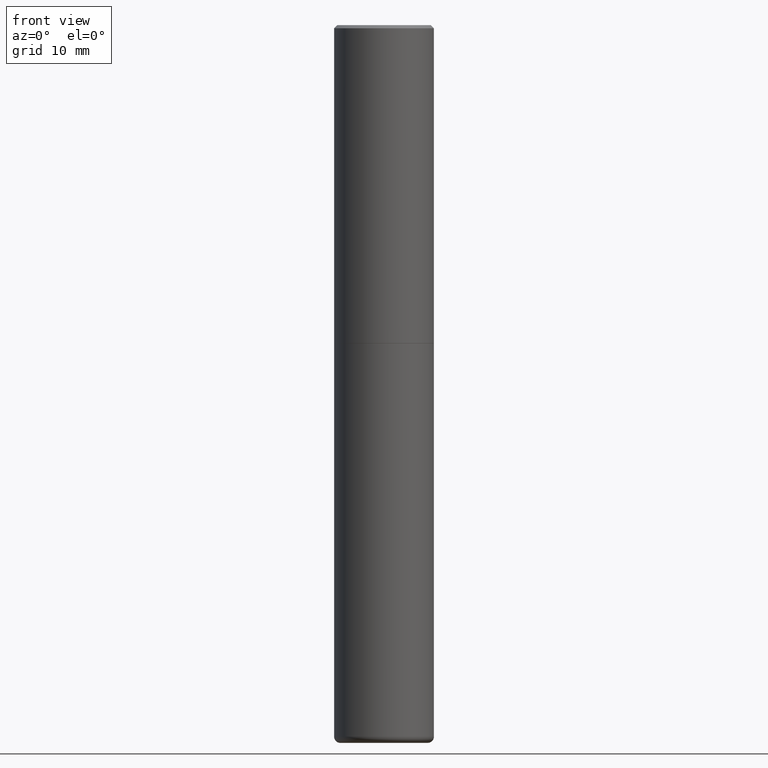
[diagram: clean part render]
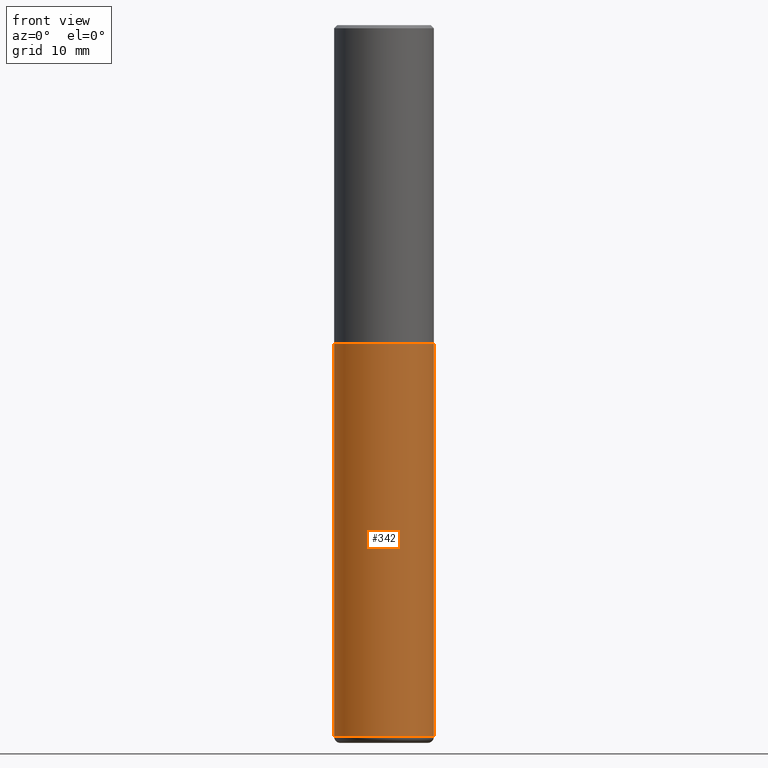
[diagram: same view with one face highlighted and labeled with its STEP entity id]
A machine part, front view. The second image highlights one B-rep face of the part: STEP entity #342.
In plain terms, the highlighted cylindrical surface (partial cylindrical patch) has radius 7.9997 mm, axis along (-0, 0, 1).
Its self-contained STEP definition (entity closure, byte-faithful):
#23 = DIRECTION ( 'NONE',  ( 1.000000000000000000, -6.982962677686266711E-15, 4.876176775795936353E-29 ) ) ;
#34 = VECTOR ( 'NONE', #242, 39.37007874015748143 ) ;
#38 = ORIENTED_EDGE ( 'NONE', *, *, #73, .F. ) ;
#43 = CIRCLE ( 'NONE', #371, 0.3149500000000000077 ) ;
#45 = DIRECTION ( 'NONE',  ( -2.445468806185136597E-29, 3.491481338843145583E-15, 1.000000000000000000 ) ) ;
#55 = CARTESIAN_POINT ( 'NONE',  ( -0.3149500000000000077, -9.102651616353041816E-15, -2.007899999999999796 ) ) ;
#62 = CARTESIAN_POINT ( 'NONE',  ( 0.3149500000000000077, -2.199284095337289871E-15, 1.535751875536930130E-29 ) ) ;
#70 = CIRCLE ( 'NONE', #294, 0.3149500000000000077 ) ;
#73 = EDGE_CURVE ( 'NONE', #396, #287, #338, .T. ) ;
#87 = CARTESIAN_POINT ( 'NONE',  ( 0.3149499999999998967, -1.786975064033308982E-14, -4.488199999999999079 ) ) ;
#105 = CARTESIAN_POINT ( 'NONE',  ( 0.000000000000000000, 0.000000000000000000, 0.000000000000000000 ) ) ;
#115 = CYLINDRICAL_SURFACE ( 'NONE', #186, 0.3149500000000000077 ) ;
#128 = EDGE_CURVE ( 'NONE', #221, #326, #181, .T. ) ;
#155 = ORIENTED_EDGE ( 'NONE', *, *, #283, .T. ) ;
#157 = ORIENTED_EDGE ( 'NONE', *, *, #224, .F. ) ;
#164 = DIRECTION ( 'NONE',  ( -2.445468806185136877E-29, 3.491481338843145188E-15, 1.000000000000000000 ) ) ;
#181 = LINE ( 'NONE', #62, #34 ) ;
#186 = AXIS2_PLACEMENT_3D ( 'NONE', #105, #45, #23 ) ;
#203 = DIRECTION ( 'NONE',  ( 1.000000000000000000, -6.982962677686269866E-15, 0.000000000000000000 ) ) ;
#221 = VERTEX_POINT ( 'NONE', #87 ) ;
#224 = EDGE_CURVE ( 'NONE', #287, #326, #43, .T. ) ;
#227 = DIRECTION ( 'NONE',  ( -2.445468806185136597E-29, 3.491481338843145583E-15, 1.000000000000000000 ) ) ;
#242 = DIRECTION ( 'NONE',  ( -2.445468806185136877E-29, 3.491481338843145188E-15, 1.000000000000000000 ) ) ;
#249 = DIRECTION ( 'NONE',  ( 1.000000000000000000, -6.982962677686263555E-15, 0.000000000000000000 ) ) ;
#265 = CARTESIAN_POINT ( 'NONE',  ( 1.097575309592012950E-28, -1.567046654499580152E-14, -4.488199999999999079 ) ) ;
#283 = EDGE_CURVE ( 'NONE', #396, #221, #70, .T. ) ;
#287 = VERTEX_POINT ( 'NONE', #55 ) ;
#294 = AXIS2_PLACEMENT_3D ( 'NONE', #265, #227, #203 ) ;
#305 = CARTESIAN_POINT ( 'NONE',  ( -0.3149500000000000077, 2.237854346276435590E-15, -1.549218606675782676E-29 ) ) ;
#314 = DIRECTION ( 'NONE',  ( -2.445468806185136597E-29, 3.491481338843145583E-15, 1.000000000000000000 ) ) ;
#322 = VECTOR ( 'NONE', #164, 39.37007874015748143 ) ;
#326 = VERTEX_POINT ( 'NONE', #397 ) ;
#338 = LINE ( 'NONE', #305, #322 ) ;
#342 = ADVANCED_FACE ( 'NONE', ( #407 ), #115, .T. ) ;
#343 = ORIENTED_EDGE ( 'NONE', *, *, #128, .T. ) ;
#346 = CARTESIAN_POINT ( 'NONE',  ( 4.910256815939135870E-29, -7.010545380263151710E-15, -2.007899999999999796 ) ) ;
#352 = CARTESIAN_POINT ( 'NONE',  ( -0.3149499999999998967, -1.343261219871936712E-14, -4.488199999999999079 ) ) ;
#355 = EDGE_LOOP ( 'NONE', ( #38, #155, #343, #157 ) ) ;
#371 = AXIS2_PLACEMENT_3D ( 'NONE', #346, #314, #249 ) ;
#396 = VERTEX_POINT ( 'NONE', #352 ) ;
#397 = CARTESIAN_POINT ( 'NONE',  ( 0.3149500000000000077, -9.209829475600440793E-15, -2.007899999999999796 ) ) ;
#407 = FACE_OUTER_BOUND ( 'NONE', #355, .T. ) ;